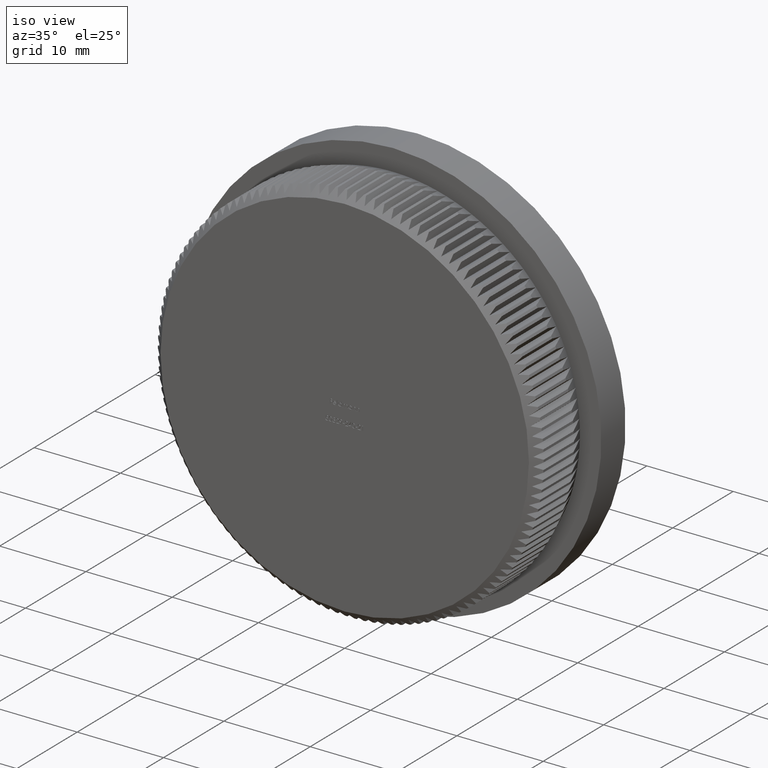
[diagram: clean part render]
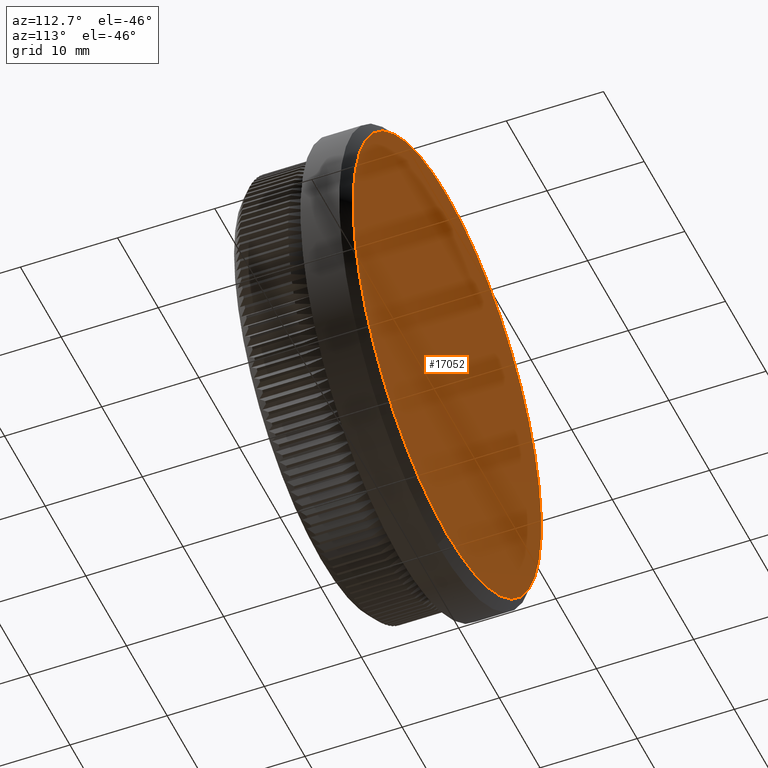
[diagram: tour spotlight — one face highlighted and labeled with its STEP entity id]
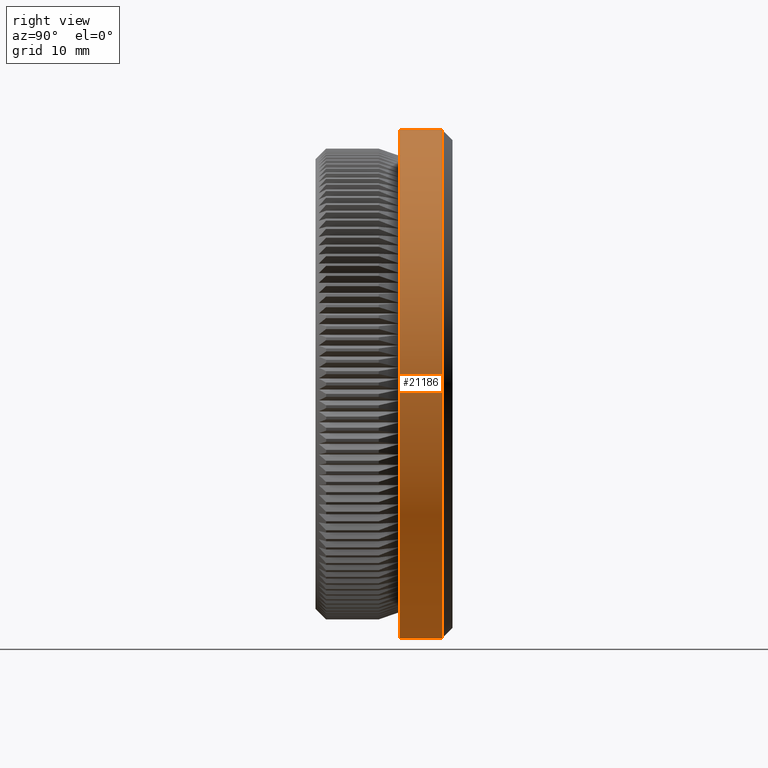
[diagram: tour spotlight — one face highlighted and labeled with its STEP entity id]
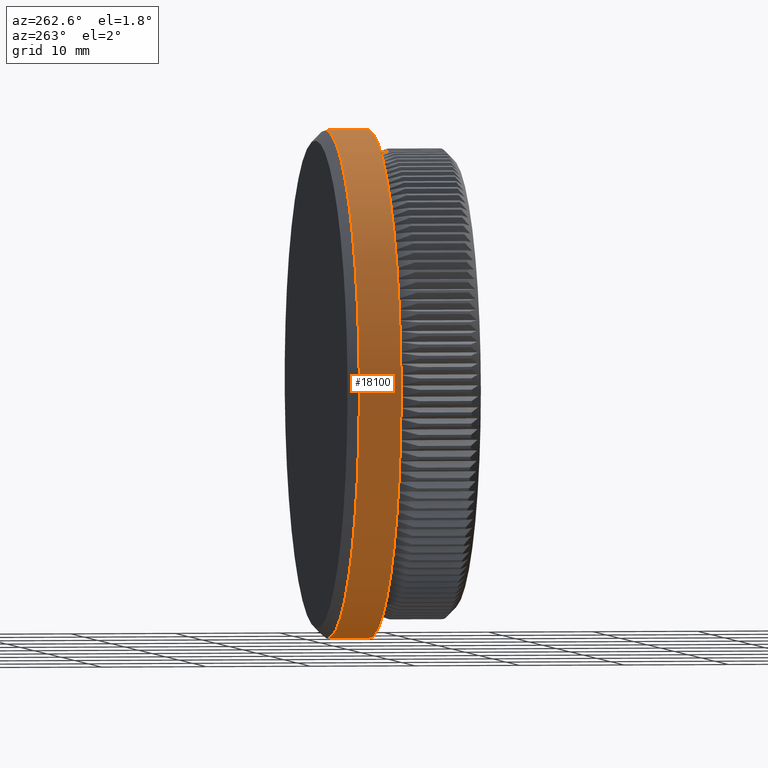
[diagram: tour spotlight — one face highlighted and labeled with its STEP entity id]
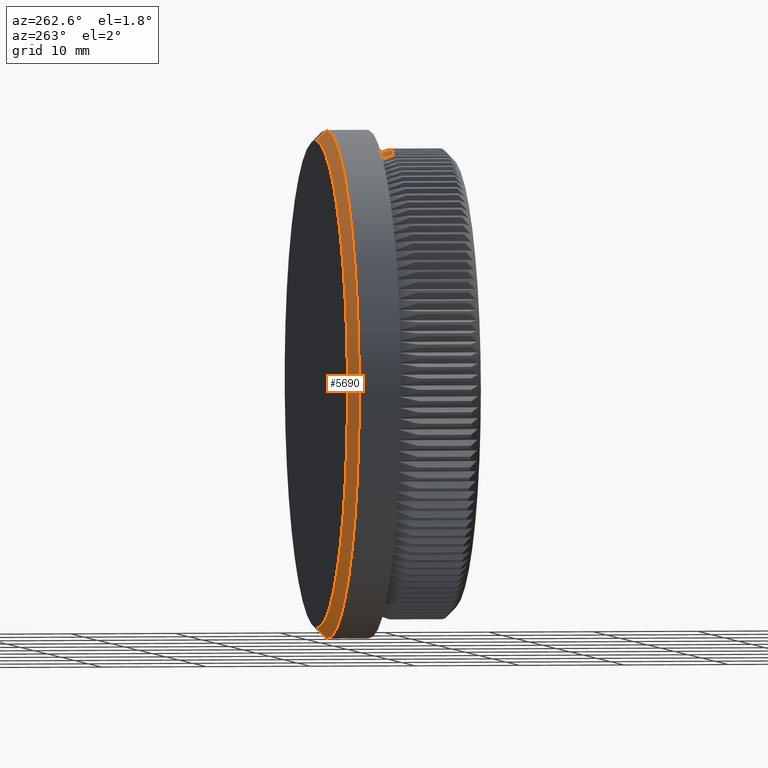
[diagram: tour spotlight — one face highlighted and labeled with its STEP entity id]
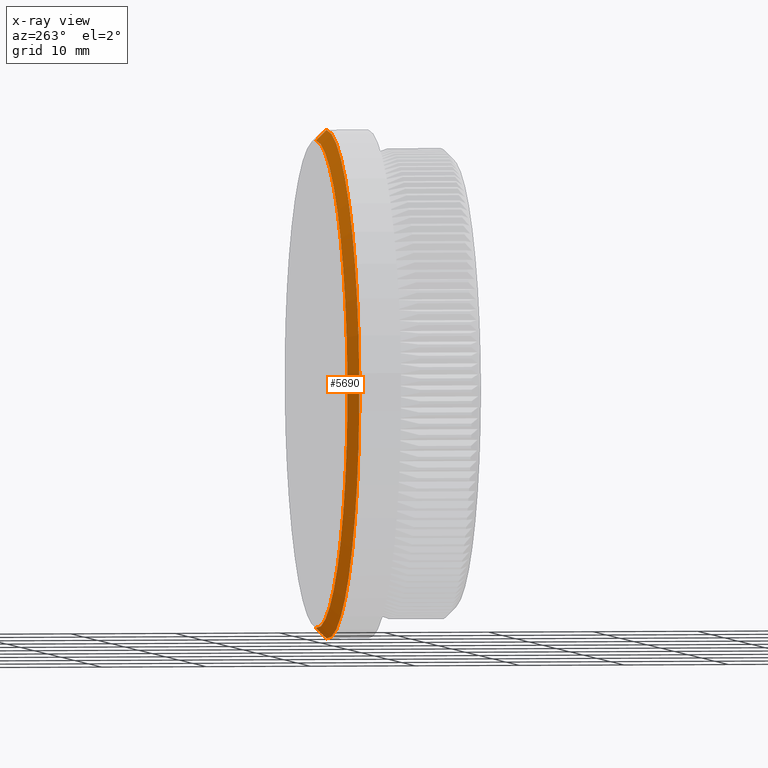
[diagram: x-ray of the same camera — body ghosted, this tour face saturated]
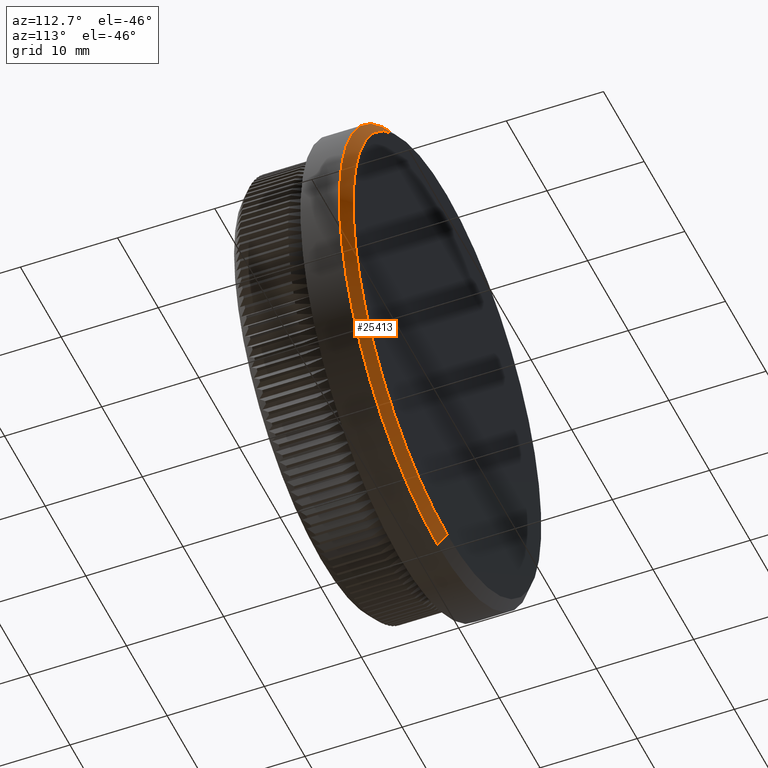
[diagram: tour spotlight — one face highlighted and labeled with its STEP entity id]
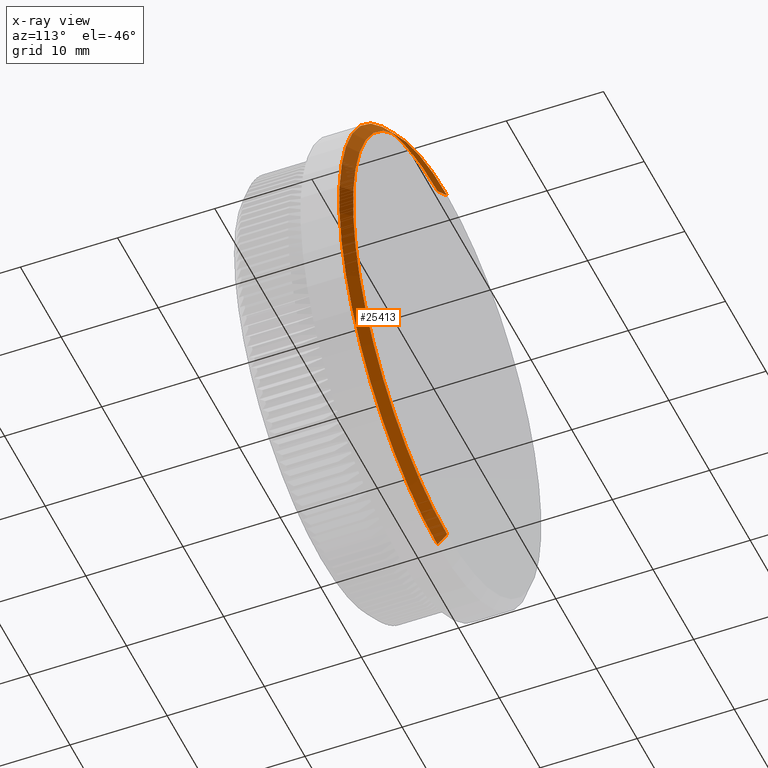
[diagram: x-ray of the same camera — body ghosted, this tour face saturated]
A machine part: a face-by-face anatomy tour. The part has 782 B-rep faces; the first image is the clean iso view, then the 5 largest visible faces are spotlighted one at a time (largest first), each with its STEP entity span.

Face 1 — auxiliary view, entity #17052. In plain terms, the highlighted planar face has unit normal (0, 1, 0).
Definition (entity closure, byte-faithful):
#190 = VERTEX_POINT ( 'NONE', #22935 ) ;
#925 = CIRCLE ( 'NONE', #1551, 23.14999999999999900 ) ;
#1136 = DIRECTION ( 'NONE',  ( 0.0000000000000000000, 0.0000000000000000000, 1.000000000000000000 ) ) ;
#1469 = VERTEX_POINT ( 'NONE', #8509 ) ;
#1551 = AXIS2_PLACEMENT_3D ( 'NONE', #19153, #16918, #23859 ) ;
#2952 = EDGE_LOOP ( 'NONE', ( #27017, #11127 ) ) ;
#4472 = AXIS2_PLACEMENT_3D ( 'NONE', #13475, #11451, #11168 ) ;
#5595 = EDGE_CURVE ( 'NONE', #1469, #190, #925, .T. ) ;
#7384 = FACE_OUTER_BOUND ( 'NONE', #2952, .T. ) ;
#8169 = DIRECTION ( 'NONE',  ( 0.0000000000000000000, 1.000000000000000000, 0.0000000000000000000 ) ) ;
#8509 = CARTESIAN_POINT ( 'NONE',  ( 2.896289679983490000E-015, 13.00000000000000000, 23.14999999999999900 ) ) ;
#11127 = ORIENTED_EDGE ( 'NONE', *, *, #5595, .T. ) ;
#11168 = DIRECTION ( 'NONE',  ( 0.0000000000000000000, -0.0000000000000000000, 1.000000000000000000 ) ) ;
#11451 = DIRECTION ( 'NONE',  ( 0.0000000000000000000, 1.000000000000000000, 0.0000000000000000000 ) ) ;
#13475 = CARTESIAN_POINT ( 'NONE',  ( 0.0000000000000000000, 13.00000000000000000, 0.0000000000000000000 ) ) ;
#16918 = DIRECTION ( 'NONE',  ( 0.0000000000000000000, 1.000000000000000000, 0.0000000000000000000 ) ) ;
#17052 = ADVANCED_FACE ( 'NONE', ( #7384 ), #22844, .T. ) ;
#17417 = EDGE_CURVE ( 'NONE', #190, #1469, #26649, .T. ) ;
#19153 = CARTESIAN_POINT ( 'NONE',  ( 0.0000000000000000000, 13.00000000000000000, 0.0000000000000000000 ) ) ;
#22089 = CARTESIAN_POINT ( 'NONE',  ( 0.0000000000000000000, 13.00000000000000000, 0.0000000000000000000 ) ) ;
#22844 = PLANE ( 'NONE',  #4472 ) ;
#22935 = CARTESIAN_POINT ( 'NONE',  ( 0.0000000000000000000, 13.00000000000000000, -23.14999999999999900 ) ) ;
#23859 = DIRECTION ( 'NONE',  ( 0.0000000000000000000, 0.0000000000000000000, 1.000000000000000000 ) ) ;
#24530 = AXIS2_PLACEMENT_3D ( 'NONE', #22089, #8169, #1136 ) ;
#26649 = CIRCLE ( 'NONE', #24530, 23.14999999999999900 ) ;
#27017 = ORIENTED_EDGE ( 'NONE', *, *, #17417, .T. ) ;

Face 2 — right view, entity #21186. In plain terms, the highlighted cylindrical surface (partial cylindrical patch) has radius 24.15 mm, axis along (-0, -1, -0).
Definition (entity closure, byte-faithful):
#491 = CARTESIAN_POINT ( 'NONE',  ( 2.957522019940857900E-015, 0.0000000000000000000, 24.14999999999999900 ) ) ;
#1279 = DIRECTION ( 'NONE',  ( -0.0000000000000000000, -1.000000000000000000, -0.0000000000000000000 ) ) ;
#2593 = LINE ( 'NONE', #491, #14246 ) ;
#2936 = CARTESIAN_POINT ( 'NONE',  ( 0.0000000000000000000, 0.0000000000000000000, 0.0000000000000000000 ) ) ;
#4502 = VECTOR ( 'NONE', #9343, 1000.000000000000000 ) ;
#4693 = AXIS2_PLACEMENT_3D ( 'NONE', #7480, #16530, #5068 ) ;
#4888 = DIRECTION ( 'NONE',  ( 0.0000000000000000000, 0.0000000000000000000, -1.000000000000000000 ) ) ;
#5068 = DIRECTION ( 'NONE',  ( 0.0000000000000000000, 0.0000000000000000000, 1.000000000000000000 ) ) ;
#7480 = CARTESIAN_POINT ( 'NONE',  ( 0.0000000000000000000, 11.99999999999999500, 0.0000000000000000000 ) ) ;
#7552 = CYLINDRICAL_SURFACE ( 'NONE', #26532, 24.14999999999999900 ) ;
#7933 = ORIENTED_EDGE ( 'NONE', *, *, #25400, .T. ) ;
#8123 = LINE ( 'NONE', #11762, #4502 ) ;
#8181 = VERTEX_POINT ( 'NONE', #17445 ) ;
#8686 = VERTEX_POINT ( 'NONE', #29979 ) ;
#9343 = DIRECTION ( 'NONE',  ( -0.0000000000000000000, -1.000000000000000000, -0.0000000000000000000 ) ) ;
#11762 = CARTESIAN_POINT ( 'NONE',  ( 0.0000000000000000000, 0.0000000000000000000, -24.14999999999999900 ) ) ;
#13783 = CIRCLE ( 'NONE', #28143, 24.14999999999999900 ) ;
#14246 = VECTOR ( 'NONE', #19108, 1000.000000000000000 ) ;
#16491 = EDGE_CURVE ( 'NONE', #22218, #8686, #8123, .T. ) ;
#16530 = DIRECTION ( 'NONE',  ( -0.0000000000000000000, -1.000000000000000000, -0.0000000000000000000 ) ) ;
#17260 = CARTESIAN_POINT ( 'NONE',  ( 2.957522019940857900E-015, 11.99999999999999500, 24.14999999999999900 ) ) ;
#17445 = CARTESIAN_POINT ( 'NONE',  ( 2.957522019940857900E-015, 8.000000000000000000, 24.14999999999999900 ) ) ;
#18875 = EDGE_CURVE ( 'NONE', #22218, #24495, #21135, .T. ) ;
#19108 = DIRECTION ( 'NONE',  ( -0.0000000000000000000, -1.000000000000000000, -0.0000000000000000000 ) ) ;
#21135 = CIRCLE ( 'NONE', #4693, 24.14999999999999900 ) ;
#21186 = ADVANCED_FACE ( 'NONE', ( #28349 ), #7552, .T. ) ;
#21217 = DIRECTION ( 'NONE',  ( -0.0000000000000000000, -1.000000000000000000, -0.0000000000000000000 ) ) ;
#21437 = ORIENTED_EDGE ( 'NONE', *, *, #16491, .F. ) ;
#21803 = CARTESIAN_POINT ( 'NONE',  ( 0.0000000000000000000, 11.99999999999999500, -24.14999999999999900 ) ) ;
#22218 = VERTEX_POINT ( 'NONE', #21803 ) ;
#24495 = VERTEX_POINT ( 'NONE', #17260 ) ;
#25400 = EDGE_CURVE ( 'NONE', #24495, #8181, #2593, .T. ) ;
#26480 = EDGE_LOOP ( 'NONE', ( #26713, #7933, #26633, #21437 ) ) ;
#26532 = AXIS2_PLACEMENT_3D ( 'NONE', #2936, #21217, #4888 ) ;
#26633 = ORIENTED_EDGE ( 'NONE', *, *, #27329, .F. ) ;
#26713 = ORIENTED_EDGE ( 'NONE', *, *, #18875, .T. ) ;
#26721 = CARTESIAN_POINT ( 'NONE',  ( 0.0000000000000000000, 8.000000000000000000, 0.0000000000000000000 ) ) ;
#27010 = DIRECTION ( 'NONE',  ( 0.0000000000000000000, 0.0000000000000000000, -1.000000000000000000 ) ) ;
#27329 = EDGE_CURVE ( 'NONE', #8686, #8181, #13783, .T. ) ;
#28143 = AXIS2_PLACEMENT_3D ( 'NONE', #26721, #1279, #27010 ) ;
#28349 = FACE_OUTER_BOUND ( 'NONE', #26480, .T. ) ;
#29979 = CARTESIAN_POINT ( 'NONE',  ( 0.0000000000000000000, 8.000000000000000000, -24.14999999999999900 ) ) ;

Face 3 — auxiliary view, entity #18100. In plain terms, the highlighted cylindrical surface (partial cylindrical patch) has radius 24.15 mm, axis along (-0, -1, -0).
Definition (entity closure, byte-faithful):
#491 = CARTESIAN_POINT ( 'NONE',  ( 2.957522019940857900E-015, 0.0000000000000000000, 24.14999999999999900 ) ) ;
#928 = DIRECTION ( 'NONE',  ( 0.0000000000000000000, 0.0000000000000000000, -1.000000000000000000 ) ) ;
#1225 = DIRECTION ( 'NONE',  ( -0.0000000000000000000, -1.000000000000000000, -0.0000000000000000000 ) ) ;
#2593 = LINE ( 'NONE', #491, #14246 ) ;
#4245 = DIRECTION ( 'NONE',  ( 0.0000000000000000000, 0.0000000000000000000, -1.000000000000000000 ) ) ;
#4502 = VECTOR ( 'NONE', #9343, 1000.000000000000000 ) ;
#6503 = EDGE_CURVE ( 'NONE', #24495, #22218, #26755, .T. ) ;
#7352 = CYLINDRICAL_SURFACE ( 'NONE', #7963, 24.14999999999999900 ) ;
#7963 = AXIS2_PLACEMENT_3D ( 'NONE', #11536, #8810, #4245 ) ;
#8123 = LINE ( 'NONE', #11762, #4502 ) ;
#8181 = VERTEX_POINT ( 'NONE', #17445 ) ;
#8686 = VERTEX_POINT ( 'NONE', #29979 ) ;
#8777 = AXIS2_PLACEMENT_3D ( 'NONE', #27988, #16602, #18830 ) ;
#8810 = DIRECTION ( 'NONE',  ( -0.0000000000000000000, -1.000000000000000000, -0.0000000000000000000 ) ) ;
#9230 = AXIS2_PLACEMENT_3D ( 'NONE', #15080, #1225, #928 ) ;
#9343 = DIRECTION ( 'NONE',  ( -0.0000000000000000000, -1.000000000000000000, -0.0000000000000000000 ) ) ;
#9927 = FACE_OUTER_BOUND ( 'NONE', #12620, .T. ) ;
#11536 = CARTESIAN_POINT ( 'NONE',  ( 0.0000000000000000000, 0.0000000000000000000, 0.0000000000000000000 ) ) ;
#11762 = CARTESIAN_POINT ( 'NONE',  ( 0.0000000000000000000, 0.0000000000000000000, -24.14999999999999900 ) ) ;
#12620 = EDGE_LOOP ( 'NONE', ( #18948, #19633, #28232, #28032 ) ) ;
#14246 = VECTOR ( 'NONE', #19108, 1000.000000000000000 ) ;
#15080 = CARTESIAN_POINT ( 'NONE',  ( 0.0000000000000000000, 8.000000000000000000, 0.0000000000000000000 ) ) ;
#16491 = EDGE_CURVE ( 'NONE', #22218, #8686, #8123, .T. ) ;
#16602 = DIRECTION ( 'NONE',  ( -0.0000000000000000000, -1.000000000000000000, -0.0000000000000000000 ) ) ;
#17260 = CARTESIAN_POINT ( 'NONE',  ( 2.957522019940857900E-015, 11.99999999999999500, 24.14999999999999900 ) ) ;
#17445 = CARTESIAN_POINT ( 'NONE',  ( 2.957522019940857900E-015, 8.000000000000000000, 24.14999999999999900 ) ) ;
#18100 = ADVANCED_FACE ( 'NONE', ( #9927 ), #7352, .T. ) ;
#18830 = DIRECTION ( 'NONE',  ( 0.0000000000000000000, 0.0000000000000000000, 1.000000000000000000 ) ) ;
#18948 = ORIENTED_EDGE ( 'NONE', *, *, #25400, .F. ) ;
#19108 = DIRECTION ( 'NONE',  ( -0.0000000000000000000, -1.000000000000000000, -0.0000000000000000000 ) ) ;
#19633 = ORIENTED_EDGE ( 'NONE', *, *, #6503, .T. ) ;
#20532 = CIRCLE ( 'NONE', #9230, 24.14999999999999900 ) ;
#21803 = CARTESIAN_POINT ( 'NONE',  ( 0.0000000000000000000, 11.99999999999999500, -24.14999999999999900 ) ) ;
#22218 = VERTEX_POINT ( 'NONE', #21803 ) ;
#22465 = EDGE_CURVE ( 'NONE', #8181, #8686, #20532, .T. ) ;
#24495 = VERTEX_POINT ( 'NONE', #17260 ) ;
#25400 = EDGE_CURVE ( 'NONE', #24495, #8181, #2593, .T. ) ;
#26755 = CIRCLE ( 'NONE', #8777, 24.14999999999999900 ) ;
#27988 = CARTESIAN_POINT ( 'NONE',  ( 0.0000000000000000000, 11.99999999999999500, 0.0000000000000000000 ) ) ;
#28032 = ORIENTED_EDGE ( 'NONE', *, *, #22465, .F. ) ;
#28232 = ORIENTED_EDGE ( 'NONE', *, *, #16491, .T. ) ;
#29979 = CARTESIAN_POINT ( 'NONE',  ( 0.0000000000000000000, 8.000000000000000000, -24.14999999999999900 ) ) ;

Face 4 — auxiliary view, entity #5690. An x-ray twin of the same camera follows (body ghosted, this face saturated) — the face is partly hidden behind the body. In plain terms, the highlighted conical surface has half-angle 45 deg.
Definition (entity closure, byte-faithful):
#190 = VERTEX_POINT ( 'NONE', #22935 ) ;
#966 = DIRECTION ( 'NONE',  ( 0.0000000000000000000, -0.7071067811865487900, -0.7071067811865463500 ) ) ;
#1136 = DIRECTION ( 'NONE',  ( 0.0000000000000000000, 0.0000000000000000000, 1.000000000000000000 ) ) ;
#1469 = VERTEX_POINT ( 'NONE', #8509 ) ;
#5690 = ADVANCED_FACE ( 'NONE', ( #20224 ), #24956, .T. ) ;
#5751 = CARTESIAN_POINT ( 'NONE',  ( 0.0000000000000000000, 11.99999999999999500, 0.0000000000000000000 ) ) ;
#6503 = EDGE_CURVE ( 'NONE', #24495, #22218, #26755, .T. ) ;
#8169 = DIRECTION ( 'NONE',  ( 0.0000000000000000000, 1.000000000000000000, 0.0000000000000000000 ) ) ;
#8509 = CARTESIAN_POINT ( 'NONE',  ( 2.896289679983490000E-015, 13.00000000000000000, 23.14999999999999900 ) ) ;
#8777 = AXIS2_PLACEMENT_3D ( 'NONE', #27988, #16602, #18830 ) ;
#9374 = AXIS2_PLACEMENT_3D ( 'NONE', #5751, #24234, #26472 ) ;
#10260 = CARTESIAN_POINT ( 'NONE',  ( 0.0000000000000000000, 11.99999999999999500, -24.14999999999999900 ) ) ;
#12126 = ORIENTED_EDGE ( 'NONE', *, *, #23581, .T. ) ;
#12798 = LINE ( 'NONE', #25459, #29933 ) ;
#14671 = LINE ( 'NONE', #10260, #15024 ) ;
#15024 = VECTOR ( 'NONE', #966, 1000.000000000000000 ) ;
#16511 = EDGE_LOOP ( 'NONE', ( #28054, #29675, #12126, #25482 ) ) ;
#16602 = DIRECTION ( 'NONE',  ( -0.0000000000000000000, -1.000000000000000000, -0.0000000000000000000 ) ) ;
#17260 = CARTESIAN_POINT ( 'NONE',  ( 2.957522019940857900E-015, 11.99999999999999500, 24.14999999999999900 ) ) ;
#17417 = EDGE_CURVE ( 'NONE', #190, #1469, #26649, .T. ) ;
#17539 = EDGE_CURVE ( 'NONE', #1469, #24495, #12798, .T. ) ;
#18830 = DIRECTION ( 'NONE',  ( 0.0000000000000000000, 0.0000000000000000000, 1.000000000000000000 ) ) ;
#20224 = FACE_OUTER_BOUND ( 'NONE', #16511, .T. ) ;
#21803 = CARTESIAN_POINT ( 'NONE',  ( 0.0000000000000000000, 11.99999999999999500, -24.14999999999999900 ) ) ;
#22089 = CARTESIAN_POINT ( 'NONE',  ( 0.0000000000000000000, 13.00000000000000000, 0.0000000000000000000 ) ) ;
#22218 = VERTEX_POINT ( 'NONE', #21803 ) ;
#22935 = CARTESIAN_POINT ( 'NONE',  ( 0.0000000000000000000, 13.00000000000000000, -23.14999999999999900 ) ) ;
#23581 = EDGE_CURVE ( 'NONE', #190, #22218, #14671, .T. ) ;
#24234 = DIRECTION ( 'NONE',  ( -0.0000000000000000000, -1.000000000000000000, -0.0000000000000000000 ) ) ;
#24495 = VERTEX_POINT ( 'NONE', #17260 ) ;
#24530 = AXIS2_PLACEMENT_3D ( 'NONE', #22089, #8169, #1136 ) ;
#24956 = CONICAL_SURFACE ( 'NONE', #9374, 24.14999999999999900, 0.7853981633974466100 ) ;
#25357 = DIRECTION ( 'NONE',  ( 8.659560562354918100E-017, -0.7071067811865487900, 0.7071067811865463500 ) ) ;
#25459 = CARTESIAN_POINT ( 'NONE',  ( 2.957522019940857900E-015, 11.99999999999999500, 24.14999999999999900 ) ) ;
#25482 = ORIENTED_EDGE ( 'NONE', *, *, #6503, .F. ) ;
#26472 = DIRECTION ( 'NONE',  ( 0.0000000000000000000, 0.0000000000000000000, -1.000000000000000000 ) ) ;
#26649 = CIRCLE ( 'NONE', #24530, 23.14999999999999900 ) ;
#26755 = CIRCLE ( 'NONE', #8777, 24.14999999999999900 ) ;
#27988 = CARTESIAN_POINT ( 'NONE',  ( 0.0000000000000000000, 11.99999999999999500, 0.0000000000000000000 ) ) ;
#28054 = ORIENTED_EDGE ( 'NONE', *, *, #17539, .F. ) ;
#29675 = ORIENTED_EDGE ( 'NONE', *, *, #17417, .F. ) ;
#29933 = VECTOR ( 'NONE', #25357, 1000.000000000000000 ) ;

Face 5 — auxiliary view, entity #25413. An x-ray twin of the same camera follows (body ghosted, this face saturated) — the face is partly hidden behind the body. In plain terms, the highlighted conical surface has half-angle 45 deg.
Definition (entity closure, byte-faithful):
#190 = VERTEX_POINT ( 'NONE', #22935 ) ;
#794 = DIRECTION ( 'NONE',  ( -0.0000000000000000000, -1.000000000000000000, -0.0000000000000000000 ) ) ;
#925 = CIRCLE ( 'NONE', #1551, 23.14999999999999900 ) ;
#966 = DIRECTION ( 'NONE',  ( 0.0000000000000000000, -0.7071067811865487900, -0.7071067811865463500 ) ) ;
#1469 = VERTEX_POINT ( 'NONE', #8509 ) ;
#1551 = AXIS2_PLACEMENT_3D ( 'NONE', #19153, #16918, #23859 ) ;
#2815 = AXIS2_PLACEMENT_3D ( 'NONE', #10087, #794, #7528 ) ;
#4693 = AXIS2_PLACEMENT_3D ( 'NONE', #7480, #16530, #5068 ) ;
#5068 = DIRECTION ( 'NONE',  ( 0.0000000000000000000, 0.0000000000000000000, 1.000000000000000000 ) ) ;
#5595 = EDGE_CURVE ( 'NONE', #1469, #190, #925, .T. ) ;
#7480 = CARTESIAN_POINT ( 'NONE',  ( 0.0000000000000000000, 11.99999999999999500, 0.0000000000000000000 ) ) ;
#7528 = DIRECTION ( 'NONE',  ( 0.0000000000000000000, 0.0000000000000000000, -1.000000000000000000 ) ) ;
#8509 = CARTESIAN_POINT ( 'NONE',  ( 2.896289679983490000E-015, 13.00000000000000000, 23.14999999999999900 ) ) ;
#10087 = CARTESIAN_POINT ( 'NONE',  ( 0.0000000000000000000, 11.99999999999999500, 0.0000000000000000000 ) ) ;
#10180 = ORIENTED_EDGE ( 'NONE', *, *, #5595, .F. ) ;
#10260 = CARTESIAN_POINT ( 'NONE',  ( 0.0000000000000000000, 11.99999999999999500, -24.14999999999999900 ) ) ;
#12798 = LINE ( 'NONE', #25459, #29933 ) ;
#14671 = LINE ( 'NONE', #10260, #15024 ) ;
#15024 = VECTOR ( 'NONE', #966, 1000.000000000000000 ) ;
#16530 = DIRECTION ( 'NONE',  ( -0.0000000000000000000, -1.000000000000000000, -0.0000000000000000000 ) ) ;
#16918 = DIRECTION ( 'NONE',  ( 0.0000000000000000000, 1.000000000000000000, 0.0000000000000000000 ) ) ;
#17260 = CARTESIAN_POINT ( 'NONE',  ( 2.957522019940857900E-015, 11.99999999999999500, 24.14999999999999900 ) ) ;
#17539 = EDGE_CURVE ( 'NONE', #1469, #24495, #12798, .T. ) ;
#18875 = EDGE_CURVE ( 'NONE', #22218, #24495, #21135, .T. ) ;
#19153 = CARTESIAN_POINT ( 'NONE',  ( 0.0000000000000000000, 13.00000000000000000, 0.0000000000000000000 ) ) ;
#20052 = FACE_OUTER_BOUND ( 'NONE', #20777, .T. ) ;
#20777 = EDGE_LOOP ( 'NONE', ( #10180, #24248, #20830, #27048 ) ) ;
#20830 = ORIENTED_EDGE ( 'NONE', *, *, #18875, .F. ) ;
#21135 = CIRCLE ( 'NONE', #4693, 24.14999999999999900 ) ;
#21803 = CARTESIAN_POINT ( 'NONE',  ( 0.0000000000000000000, 11.99999999999999500, -24.14999999999999900 ) ) ;
#22218 = VERTEX_POINT ( 'NONE', #21803 ) ;
#22935 = CARTESIAN_POINT ( 'NONE',  ( 0.0000000000000000000, 13.00000000000000000, -23.14999999999999900 ) ) ;
#23581 = EDGE_CURVE ( 'NONE', #190, #22218, #14671, .T. ) ;
#23859 = DIRECTION ( 'NONE',  ( 0.0000000000000000000, 0.0000000000000000000, 1.000000000000000000 ) ) ;
#24248 = ORIENTED_EDGE ( 'NONE', *, *, #17539, .T. ) ;
#24495 = VERTEX_POINT ( 'NONE', #17260 ) ;
#25357 = DIRECTION ( 'NONE',  ( 8.659560562354918100E-017, -0.7071067811865487900, 0.7071067811865463500 ) ) ;
#25413 = ADVANCED_FACE ( 'NONE', ( #20052 ), #28061, .T. ) ;
#25459 = CARTESIAN_POINT ( 'NONE',  ( 2.957522019940857900E-015, 11.99999999999999500, 24.14999999999999900 ) ) ;
#27048 = ORIENTED_EDGE ( 'NONE', *, *, #23581, .F. ) ;
#28061 = CONICAL_SURFACE ( 'NONE', #2815, 24.14999999999999900, 0.7853981633974466100 ) ;
#29933 = VECTOR ( 'NONE', #25357, 1000.000000000000000 ) ;